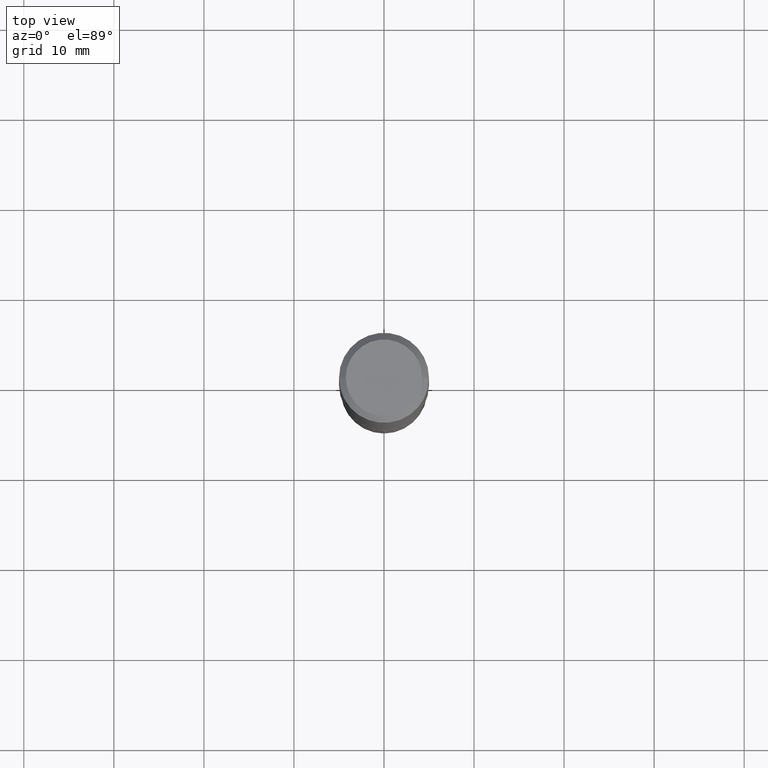
[diagram: clean part render]
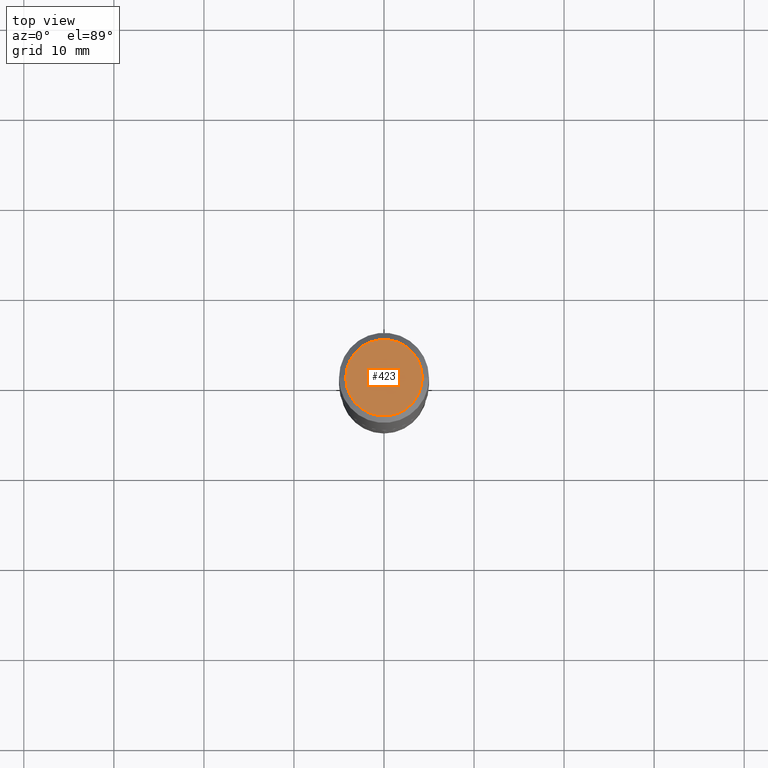
[diagram: same view with one face highlighted and labeled with its STEP entity id]
A machine part, top view. The second image highlights one B-rep face of the part: STEP entity #423.
In plain terms, the highlighted planar face has unit normal (0, -0, -1).
Its self-contained STEP definition (entity closure, byte-faithful):
#17 = ORIENTED_EDGE ( 'NONE', *, *, #225, .T. ) ;
#22 = CARTESIAN_POINT ( 'NONE',  ( -1.001697619218021790E-46, 1.430158722866389718E-32, 4.096137381448108366E-18 ) ) ;
#27 = CIRCLE ( 'NONE', #295, 0.1673224999999999851 ) ;
#47 = PLANE ( 'NONE',  #341 ) ;
#57 = CARTESIAN_POINT ( 'NONE',  ( -0.1673224999999999851, 1.219954130253505263E-15, 4.096137381439757534E-18 ) ) ;
#91 = CARTESIAN_POINT ( 'NONE',  ( -5.008488096090108951E-47, 7.150793614331948590E-33, 2.048068690724054183E-18 ) ) ;
#97 = DIRECTION ( 'NONE',  ( 1.000000000000000000, -6.982962677686267499E-15, 4.876294436782262290E-29 ) ) ;
#108 = DIRECTION ( 'NONE',  ( -2.445468806185136597E-29, 3.491481338843145583E-15, 1.000000000000000000 ) ) ;
#122 = AXIS2_PLACEMENT_3D ( 'NONE', #22, #407, #162 ) ;
#129 = FACE_OUTER_BOUND ( 'NONE', #337, .T. ) ;
#140 = ORIENTED_EDGE ( 'NONE', *, *, #444, .T. ) ;
#162 = DIRECTION ( 'NONE',  ( 1.000000000000000000, -6.982962677686267499E-15, 4.876294436782262290E-29 ) ) ;
#198 = CARTESIAN_POINT ( 'NONE',  ( 0.1673224999999999851, -1.300749711163072397E-15, 4.096137381456741925E-18 ) ) ;
#225 = EDGE_CURVE ( 'NONE', #368, #405, #27, .T. ) ;
#230 = DIRECTION ( 'NONE',  ( -1.000000000000000000, 6.982962677686265922E-15, -4.876176775795935793E-29 ) ) ;
#239 = CARTESIAN_POINT ( 'NONE',  ( -1.001697619218021790E-46, 1.430158722866389718E-32, 4.096137381448108366E-18 ) ) ;
#295 = AXIS2_PLACEMENT_3D ( 'NONE', #239, #108, #97 ) ;
#298 = DIRECTION ( 'NONE',  ( 2.438088387897960049E-29, -3.491481338843145188E-15, -1.000000000000000000 ) ) ;
#337 = EDGE_LOOP ( 'NONE', ( #17, #140 ) ) ;
#341 = AXIS2_PLACEMENT_3D ( 'NONE', #91, #298, #230 ) ;
#368 = VERTEX_POINT ( 'NONE', #57 ) ;
#405 = VERTEX_POINT ( 'NONE', #198 ) ;
#407 = DIRECTION ( 'NONE',  ( -2.445468806185136597E-29, 3.491481338843145583E-15, 1.000000000000000000 ) ) ;
#423 = ADVANCED_FACE ( 'NONE', ( #129 ), #47, .F. ) ;
#444 = EDGE_CURVE ( 'NONE', #405, #368, #466, .T. ) ;
#466 = CIRCLE ( 'NONE', #122, 0.1673224999999999851 ) ;